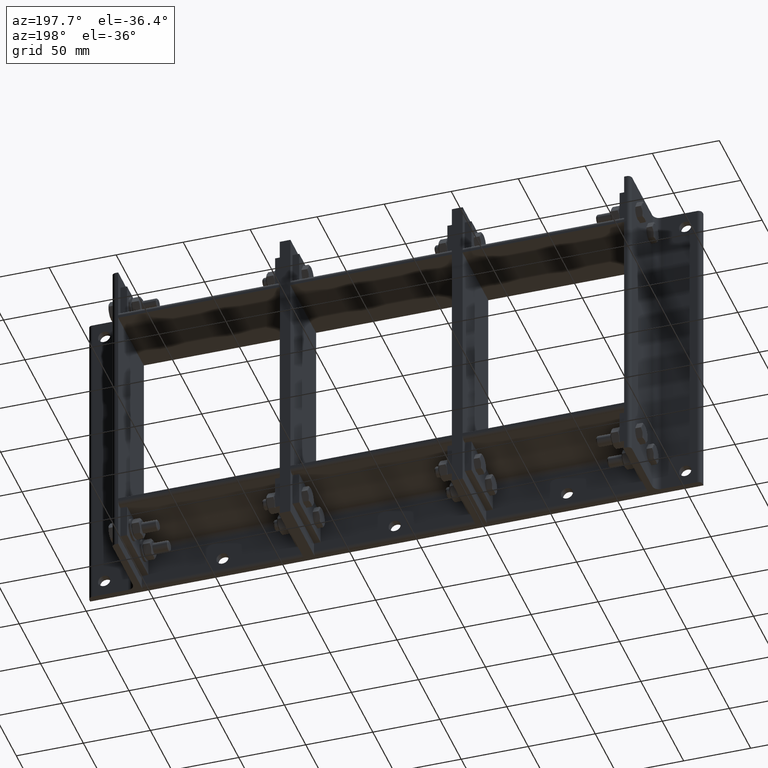
[diagram: clean part render]
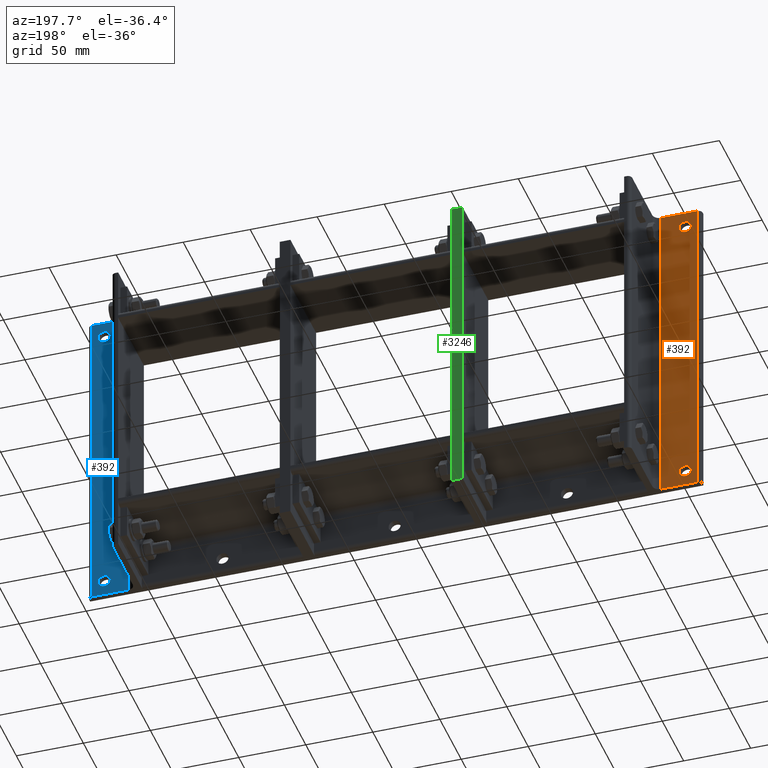
[diagram: same view with three faces highlighted in distinct colors, each labeled with its STEP entity id]
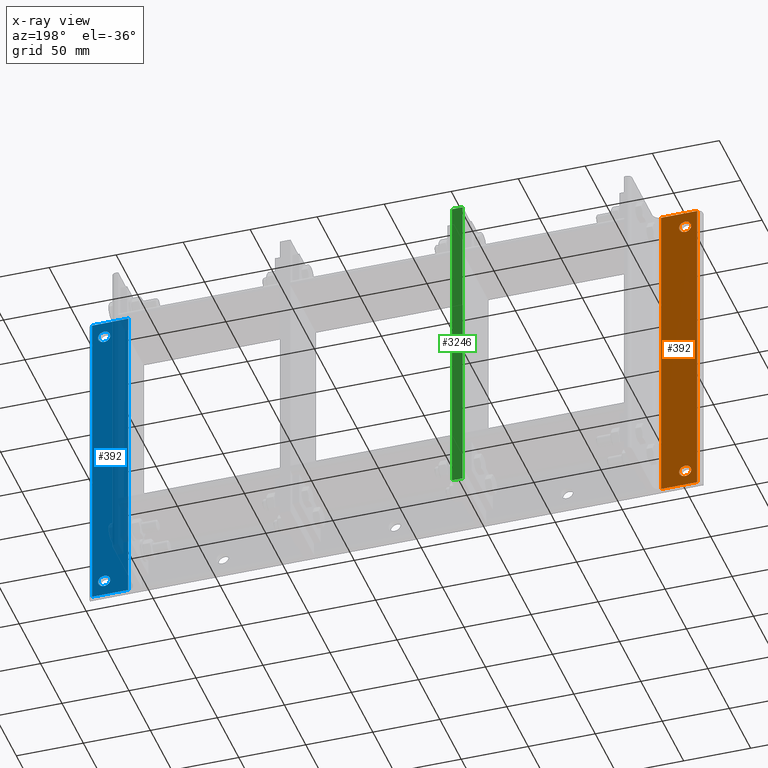
[diagram: x-ray of the same camera — body ghosted, the three highlighted faces saturated]
A machine part, auxiliary view with three faces highlighted in distinct colors.
The next image is the same camera in x-ray (body ghosted, the three faces saturated) — at least one of them is partly hidden behind the body in this view.
Their STEP definitions:

[orange] entity #392 — the highlighted planar face has unit normal (0, 1, -0).
#263=CARTESIAN_POINT('',(23.499999999999996,5.0,227.50000000000003));
#264=VERTEX_POINT('',#263);
#265=CARTESIAN_POINT('',(28.0,5.0,227.50000000000003));
#266=DIRECTION('',(0.0,-1.0,0.0));
#267=DIRECTION('',(1.0,0.0,0.0));
#268=AXIS2_PLACEMENT_3D('',#265,#266,#267);
#269=CIRCLE('',#268,4.5);
#270=EDGE_CURVE('',#264,#264,#269,.T.);
#291=CARTESIAN_POINT('',(23.499999999999996,5.0,12.000000000000002));
#292=VERTEX_POINT('',#291);
#293=CARTESIAN_POINT('',(28.0,5.0,12.000000000000002));
#294=DIRECTION('',(0.0,-1.0,0.0));
#295=DIRECTION('',(1.0,0.0,0.0));
#296=AXIS2_PLACEMENT_3D('',#293,#294,#295);
#297=CIRCLE('',#296,4.5);
#298=EDGE_CURVE('',#292,#292,#297,.T.);
#319=CARTESIAN_POINT('',(37.0,4.999999999999999,239.50000000000003));
#320=VERTEX_POINT('',#319);
#338=CARTESIAN_POINT('',(37.0,4.999999999999999,0.0));
#339=VERTEX_POINT('',#338);
#347=CARTESIAN_POINT('',(37.0,5.0,0.0));
#348=DIRECTION('',(0.0,0.0,1.0));
#349=VECTOR('',#348,239.50000000000003);
#350=LINE('',#347,#349);
#351=EDGE_CURVE('',#339,#320,#350,.T.);
#356=CARTESIAN_POINT('',(0.0,4.999999999999995,0.0));
#357=DIRECTION('',(0.0,1.0,0.0));
#358=DIRECTION('',(0.0,0.0,1.0));
#359=AXIS2_PLACEMENT_3D('',#356,#357,#358);
#360=PLANE('',#359);
#361=ORIENTED_EDGE('',*,*,#351,.F.);
#362=CARTESIAN_POINT('',(9.999999999999991,4.999999999999996,0.0));
#363=VERTEX_POINT('',#362);
#364=CARTESIAN_POINT('',(37.0,5.0,0.0));
#365=DIRECTION('',(-1.0,0.0,0.0));
#366=VECTOR('',#365,27.000000000000007);
#367=LINE('',#364,#366);
#368=EDGE_CURVE('',#339,#363,#367,.T.);
#369=ORIENTED_EDGE('',*,*,#368,.T.);
#370=CARTESIAN_POINT('',(9.999999999999991,4.999999999999996,239.50000000000003));
#371=VERTEX_POINT('',#370);
#372=CARTESIAN_POINT('',(9.999999999999993,4.999999999999996,239.50000000000003));
#373=DIRECTION('',(0.0,0.0,-1.0));
#374=VECTOR('',#373,239.50000000000003);
#375=LINE('',#372,#374);
#376=EDGE_CURVE('',#371,#363,#375,.T.);
#377=ORIENTED_EDGE('',*,*,#376,.F.);
#378=CARTESIAN_POINT('',(9.999999999999993,4.999999999999996,239.50000000000003));
#379=DIRECTION('',(1.0,0.0,0.0));
#380=VECTOR('',#379,27.000000000000007);
#381=LINE('',#378,#380);
#382=EDGE_CURVE('',#371,#320,#381,.T.);
#383=ORIENTED_EDGE('',*,*,#382,.T.);
#384=EDGE_LOOP('',(#361,#369,#377,#383));
#385=FACE_OUTER_BOUND('',#384,.T.);
#386=ORIENTED_EDGE('',*,*,#270,.T.);
#387=EDGE_LOOP('',(#386));
#388=FACE_BOUND('',#387,.T.);
#389=ORIENTED_EDGE('',*,*,#298,.T.);
#390=EDGE_LOOP('',(#389));
#391=FACE_BOUND('',#390,.T.);
#392=ADVANCED_FACE('',(#385,#388,#391),#360,.T.);

[blue] entity #392 — the highlighted planar face has unit normal (0, 1, -0).
#263=CARTESIAN_POINT('',(23.499999999999996,5.0,227.50000000000003));
#264=VERTEX_POINT('',#263);
#265=CARTESIAN_POINT('',(28.0,5.0,227.50000000000003));
#266=DIRECTION('',(0.0,-1.0,0.0));
#267=DIRECTION('',(1.0,0.0,0.0));
#268=AXIS2_PLACEMENT_3D('',#265,#266,#267);
#269=CIRCLE('',#268,4.5);
#270=EDGE_CURVE('',#264,#264,#269,.T.);
#291=CARTESIAN_POINT('',(23.499999999999996,5.0,12.000000000000002));
#292=VERTEX_POINT('',#291);
#293=CARTESIAN_POINT('',(28.0,5.0,12.000000000000002));
#294=DIRECTION('',(0.0,-1.0,0.0));
#295=DIRECTION('',(1.0,0.0,0.0));
#296=AXIS2_PLACEMENT_3D('',#293,#294,#295);
#297=CIRCLE('',#296,4.5);
#298=EDGE_CURVE('',#292,#292,#297,.T.);
#319=CARTESIAN_POINT('',(37.0,4.999999999999999,239.50000000000003));
#320=VERTEX_POINT('',#319);
#338=CARTESIAN_POINT('',(37.0,4.999999999999999,0.0));
#339=VERTEX_POINT('',#338);
#347=CARTESIAN_POINT('',(37.0,5.0,0.0));
#348=DIRECTION('',(0.0,0.0,1.0));
#349=VECTOR('',#348,239.50000000000003);
#350=LINE('',#347,#349);
#351=EDGE_CURVE('',#339,#320,#350,.T.);
#356=CARTESIAN_POINT('',(0.0,4.999999999999995,0.0));
#357=DIRECTION('',(0.0,1.0,0.0));
#358=DIRECTION('',(0.0,0.0,1.0));
#359=AXIS2_PLACEMENT_3D('',#356,#357,#358);
#360=PLANE('',#359);
#361=ORIENTED_EDGE('',*,*,#351,.F.);
#362=CARTESIAN_POINT('',(9.999999999999991,4.999999999999996,0.0));
#363=VERTEX_POINT('',#362);
#364=CARTESIAN_POINT('',(37.0,5.0,0.0));
#365=DIRECTION('',(-1.0,0.0,0.0));
#366=VECTOR('',#365,27.000000000000007);
#367=LINE('',#364,#366);
#368=EDGE_CURVE('',#339,#363,#367,.T.);
#369=ORIENTED_EDGE('',*,*,#368,.T.);
#370=CARTESIAN_POINT('',(9.999999999999991,4.999999999999996,239.50000000000003));
#371=VERTEX_POINT('',#370);
#372=CARTESIAN_POINT('',(9.999999999999993,4.999999999999996,239.50000000000003));
#373=DIRECTION('',(0.0,0.0,-1.0));
#374=VECTOR('',#373,239.50000000000003);
#375=LINE('',#372,#374);
#376=EDGE_CURVE('',#371,#363,#375,.T.);
#377=ORIENTED_EDGE('',*,*,#376,.F.);
#378=CARTESIAN_POINT('',(9.999999999999993,4.999999999999996,239.50000000000003));
#379=DIRECTION('',(1.0,0.0,0.0));
#380=VECTOR('',#379,27.000000000000007);
#381=LINE('',#378,#380);
#382=EDGE_CURVE('',#371,#320,#381,.T.);
#383=ORIENTED_EDGE('',*,*,#382,.T.);
#384=EDGE_LOOP('',(#361,#369,#377,#383));
#385=FACE_OUTER_BOUND('',#384,.T.);
#386=ORIENTED_EDGE('',*,*,#270,.T.);
#387=EDGE_LOOP('',(#386));
#388=FACE_BOUND('',#387,.T.);
#389=ORIENTED_EDGE('',*,*,#298,.T.);
#390=EDGE_LOOP('',(#389));
#391=FACE_BOUND('',#390,.T.);
#392=ADVANCED_FACE('',(#385,#388,#391),#360,.T.);

[green] entity #3246 — the highlighted planar face has unit normal (-0, 1, 0).
#3171=CARTESIAN_POINT('',(-1.776357E-014,60.0,239.50000000000003));
#3172=VERTEX_POINT('',#3171);
#3179=CARTESIAN_POINT('',(-1.776357E-014,60.0,0.0));
#3180=VERTEX_POINT('',#3179);
#3181=CARTESIAN_POINT('',(-1.776357E-014,60.0,0.0));
#3182=DIRECTION('',(0.0,0.0,1.0));
#3183=VECTOR('',#3182,239.50000000000003);
#3184=LINE('',#3181,#3183);
#3185=EDGE_CURVE('',#3180,#3172,#3184,.T.);
#3216=CARTESIAN_POINT('',(-1.776357E-014,60.0,0.0));
#3217=DIRECTION('',(0.0,1.0,0.0));
#3218=DIRECTION('',(0.0,0.0,1.0));
#3219=AXIS2_PLACEMENT_3D('',#3216,#3217,#3218);
#3220=PLANE('',#3219);
#3221=CARTESIAN_POINT('',(7.999999999999981,60.0,239.50000000000003));
#3222=VERTEX_POINT('',#3221);
#3223=CARTESIAN_POINT('',(-1.776357E-014,60.0,239.50000000000003));
#3224=DIRECTION('',(1.0,0.0,0.0));
#3225=VECTOR('',#3224,7.999999999999998);
#3226=LINE('',#3223,#3225);
#3227=EDGE_CURVE('',#3172,#3222,#3226,.T.);
#3228=ORIENTED_EDGE('',*,*,#3227,.T.);
#3229=CARTESIAN_POINT('',(7.999999999999981,60.0,0.0));
#3230=VERTEX_POINT('',#3229);
#3231=CARTESIAN_POINT('',(7.999999999999981,60.0,0.0));
#3232=DIRECTION('',(0.0,0.0,1.0));
#3233=VECTOR('',#3232,239.50000000000003);
#3234=LINE('',#3231,#3233);
#3235=EDGE_CURVE('',#3230,#3222,#3234,.T.);
#3236=ORIENTED_EDGE('',*,*,#3235,.F.);
#3237=CARTESIAN_POINT('',(7.999999999999981,60.0,0.0));
#3238=DIRECTION('',(-1.0,0.0,0.0));
#3239=VECTOR('',#3238,7.999999999999998);
#3240=LINE('',#3237,#3239);
#3241=EDGE_CURVE('',#3230,#3180,#3240,.T.);
#3242=ORIENTED_EDGE('',*,*,#3241,.T.);
#3243=ORIENTED_EDGE('',*,*,#3185,.T.);
#3244=EDGE_LOOP('',(#3228,#3236,#3242,#3243));
#3245=FACE_OUTER_BOUND('',#3244,.T.);
#3246=ADVANCED_FACE('',(#3245),#3220,.T.);